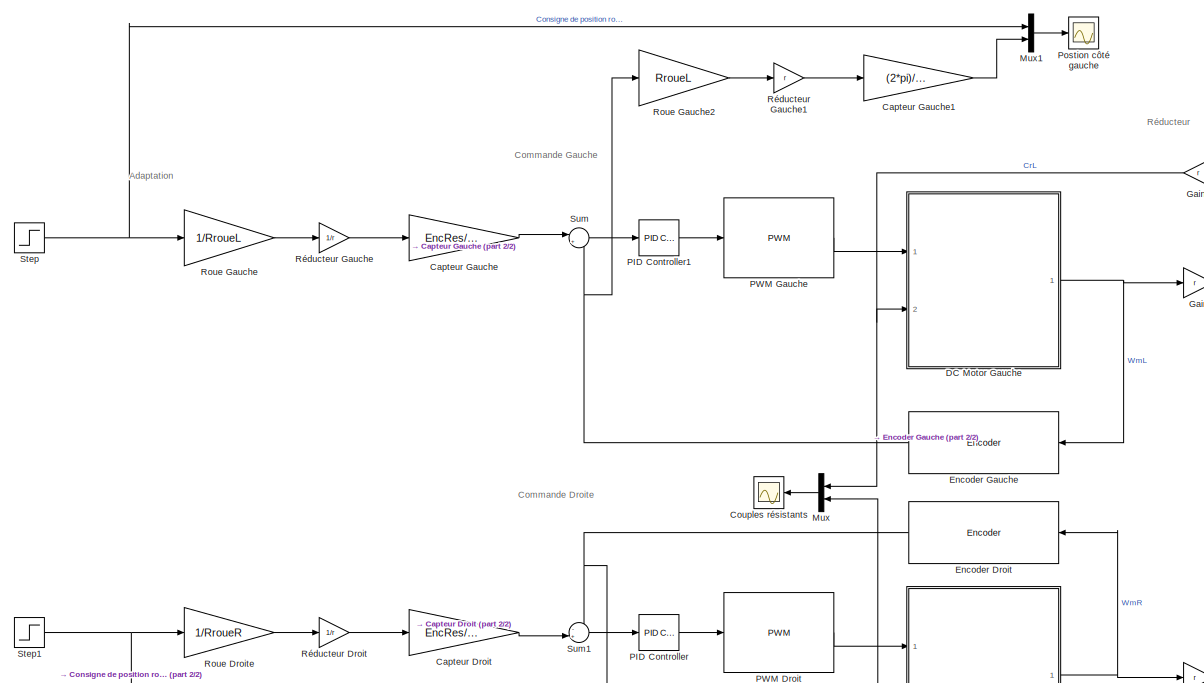
[diagram: root canvas - part 1/2, central region]
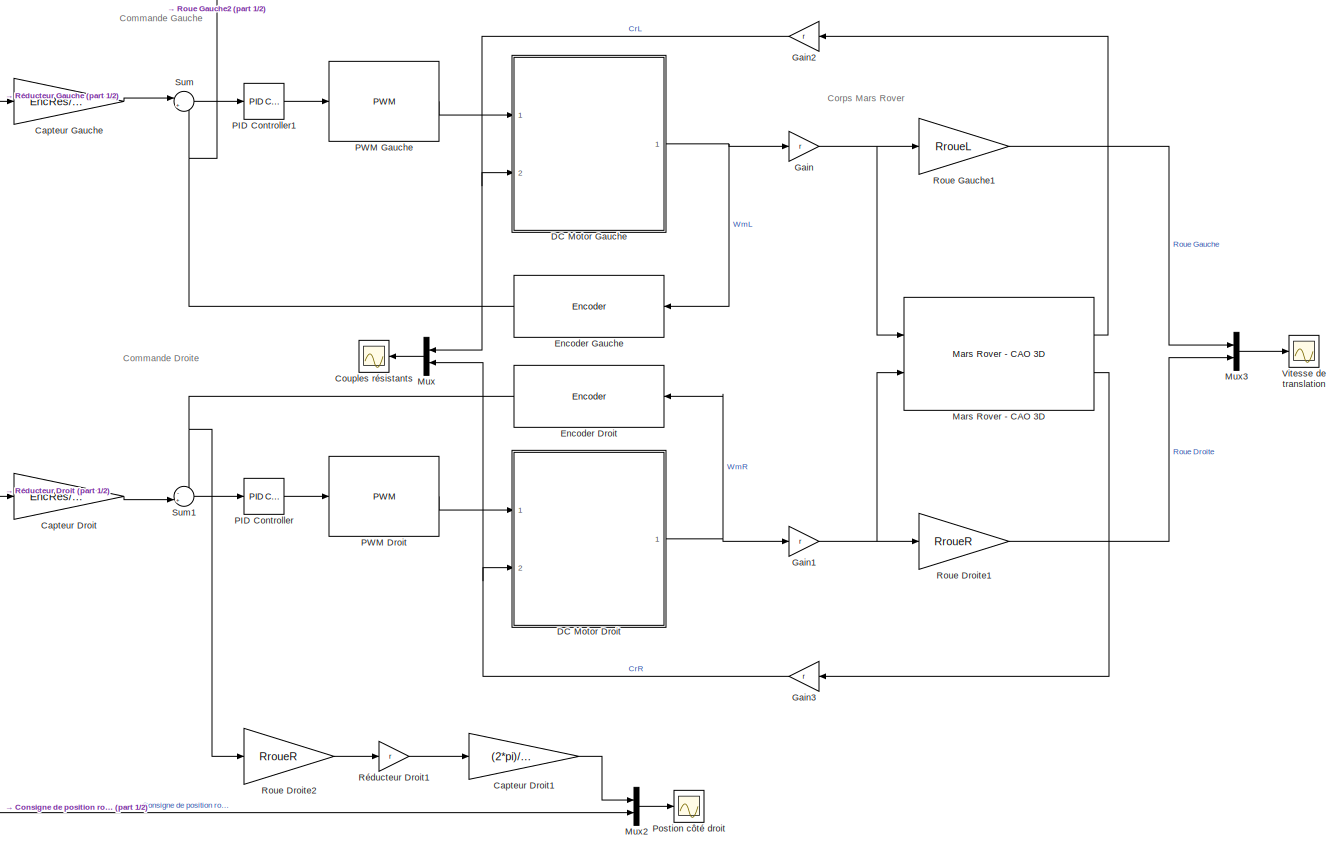
[diagram: root canvas - part 2/2, most of the canvas]
MODEL slx_0b875bb0223c
KIND model
CONFIG AbsTol = auto
CONFIG FixedStep = auto
CONFIG InitFcn = load('LeftInput_Measures.mat');\nload('LeftOutput_Measures.mat');\nParametres_Rover
CONFIG MaxStep = auto
CONFIG MinStep = auto
CONFIG RelTol = 1e-3
CONFIG SampleTimeConstraint = Unconstrained
CONFIG Solver = ode23t
CONFIG SolverMode = Auto
CONFIG SolverName = ode23t
CONFIG StartTime = 0.0
CONFIG StopTime = 10.0
BLOCK [Gain] Capteur Droit
  Gain = EncRes/(2*pi)
  OutDataTypeStr = Inherit: Inherit via internal rule
  ParamDataTypeStr = Inherit: Inherit via internal rule
  SaturateOnIntegerOverflow = off
BLOCK [Gain] Capteur Droit1
  Gain = (2*pi)/EncRes
  OutDataTypeStr = Inherit: Inherit via internal rule
  ParamDataTypeStr = Inherit: Inherit via internal rule
  SaturateOnIntegerOverflow = off
BLOCK [Gain] Capteur Gauche
  Gain = EncRes/(2*pi)
  OutDataTypeStr = Inherit: Inherit via internal rule
  ParamDataTypeStr = Inherit: Inherit via internal rule
  SaturateOnIntegerOverflow = off
BLOCK [Gain] Capteur Gauche1
  Gain = (2*pi)/EncRes
  OutDataTypeStr = Inherit: Inherit via internal rule
  ParamDataTypeStr = Inherit: Inherit via internal rule
  SaturateOnIntegerOverflow = off
BLOCK [Scope] Couples résistants
  Floating = off
  LimitDataPoints = off
  NumInputPorts = 1
  Ports = [1]
  YMax = 0.003
  YMin = -0.0015
  ZoomMode = xonly
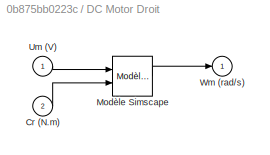
BLOCK [SubSystem] DC Motor Droit
  AttributesFormatString = %<BlockChoice>
  BlockChoice = Modèle Simscape
  MemberBlocks = Modèle Simscape,Modèle Simulink
  Ports = [2, 1]
  RequestExecContextInheritance = off
  TemplateBlock = SingleMotor_V_to_rads/DC Motor
BLOCK [Inport] DC Motor Droit/Cr (N.m)
  IconDisplay = Port number
  Port = 2
BLOCK [Reference] DC Motor Droit/Modèle Simscape  REF=SingleMotor_V_to_rads/Modèle Simscape
  Jm_lib = Jm
  Kphi_lib = Kphi
  Lm_lib = Lm
  Ports = [2, 1]
  Rm_lib = Rm
  SourceBlock = SingleMotor_V_to_rads/Modèle Simscape
  bm_lib = bm
BLOCK [Inport] DC Motor Droit/Um (V)
  IconDisplay = Port number
BLOCK [Outport] DC Motor Droit/Wm (rad//s)
  IconDisplay = Port number
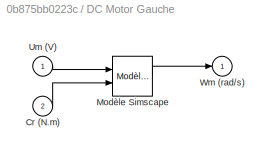
BLOCK [SubSystem] DC Motor Gauche
  AttributesFormatString = %<BlockChoice>
  BlockChoice = Modèle Simscape
  MemberBlocks = Modèle Simscape,Modèle Simulink
  Ports = [2, 1]
  RequestExecContextInheritance = off
  TemplateBlock = SingleMotor_V_to_rads/DC Motor
BLOCK [Inport] DC Motor Gauche/Cr (N.m)
  IconDisplay = Port number
  Port = 2
BLOCK [Reference] DC Motor Gauche/Modèle Simscape  REF=SingleMotor_V_to_rads/Modèle Simscape
  Jm_lib = Jm
  Kphi_lib = Kphi
  Lm_lib = Lm
  Ports = [2, 1]
  Rm_lib = Rm
  SourceBlock = SingleMotor_V_to_rads/Modèle Simscape
  bm_lib = bm
BLOCK [Inport] DC Motor Gauche/Um (V)
  IconDisplay = Port number
BLOCK [Outport] DC Motor Gauche/Wm (rad//s)
  IconDisplay = Port number
BLOCK [Reference] Encoder Droit  REF=SingleMotor_Duty_to_inc/Encoder
  EncRes = EncRes
  Ports = [1, 1]
  SourceBlock = SingleMotor_Duty_to_inc/Encoder
BLOCK [Reference] Encoder Gauche  REF=SingleMotor_Duty_to_inc/Encoder
  EncRes = EncRes
  Ports = [1, 1]
  SourceBlock = SingleMotor_Duty_to_inc/Encoder
BLOCK [Gain] Gain
  Gain = r
  OutDataTypeStr = Inherit: Inherit via internal rule
  ParamDataTypeStr = Inherit: Inherit via internal rule
  SaturateOnIntegerOverflow = off
BLOCK [Gain] Gain1
  Gain = r
  OutDataTypeStr = Inherit: Inherit via internal rule
  ParamDataTypeStr = Inherit: Inherit via internal rule
  SaturateOnIntegerOverflow = off
BLOCK [Gain] Gain2
  Gain = r
  OutDataTypeStr = Inherit: Inherit via internal rule
  ParamDataTypeStr = Inherit: Inherit via internal rule
  SaturateOnIntegerOverflow = off
BLOCK [Gain] Gain3
  Gain = r
  OutDataTypeStr = Inherit: Inherit via internal rule
  ParamDataTypeStr = Inherit: Inherit via internal rule
  SaturateOnIntegerOverflow = off
BLOCK [Reference] Mars Rover - CAO 3D  REF=MarsRover_SimMechanics/Mars Rover - CAO 3D
  Ports = [2, 2]
  SourceBlock = MarsRover_SimMechanics/Mars Rover - CAO 3D
BLOCK [Mux] Mux
  DisplayOption = bar
  Inputs = 2
  Ports = [2, 1]
BLOCK [Mux] Mux1
  DisplayOption = bar
  Inputs = 2
  Ports = [2, 1]
BLOCK [Mux] Mux2
  DisplayOption = bar
  Inputs = 2
  Ports = [2, 1]
BLOCK [Mux] Mux3
  DisplayOption = bar
  Inputs = 2
  Ports = [2, 1]
BLOCK [Reference] PID Controller  REF=simulink/Continuous/PID Controller
  AntiWindupMode = none
  Controller = PID
  ControllerParametersSource = internal
  D = DR
  DGainOutDataTypeStr = Inherit: Inherit via internal rule
  DOutDataTypeStr = Inherit: Inherit via internal rule
  DOutMax = []
  DOutMin = []
  DParamDataTypeStr = Inherit: Inherit via internal rule
  DParamMax = []
  DParamMin = []
  DProdOutDataTypeStr = Inherit: Inherit via internal rule
  DifferentiatorICPrevScaledInput = 0
  DifferentiatorOutDataTypeStr = Inherit: Inherit via internal rule
  DifferentiatorOutMax = []
  DifferentiatorOutMin = []
  ExternalReset = none
  FilterContinuousStateAttributes = ''
  FilterMethod = Forward Euler
  FilterOutDataTypeStr = Inherit: Inherit via internal rule
  FilterOutMax = []
  FilterOutMin = []
  FilterRTWStateStorageClass = Auto
  FilterStateMustResolveToSignalObject = off
  Form = Parallel
  I = IR
  IGainOutDataTypeStr = Inherit: Inherit via internal rule
  IOutDataTypeStr = Inherit: Inherit via internal rule
  IOutMax = []
  IOutMin = []
  IParamDataTypeStr = Inherit: Inherit via internal rule
  IParamMax = []
  IParamMin = []
  IProdOutDataTypeStr = Inherit: Inherit via internal rule
  IgnoreLimit = off
  InitialConditionForFilter = 0
  InitialConditionForIntegrator = 0
  InitialConditionSource = internal
  IntegratorContinuousStateAttributes = ''
  IntegratorMethod = Forward Euler
  IntegratorOutDataTypeStr = Inherit: Inherit via internal rule
  IntegratorOutMax = []
  IntegratorOutMin = []
  IntegratorRTWStateStorageClass = Auto
  IntegratorStateMustResolveToSignalObject = off
  Kb = 1
  KbOutDataTypeStr = Inherit: Inherit via internal rule
  KbOutMax = []
  KbOutMin = []
  KbParamDataTypeStr = Inherit: Inherit via internal rule
  KbParamMax = []
  KbParamMin = []
  Kt = 1
  KtOutDataTypeStr = Inherit: Inherit via internal rule
  KtOutMax = []
  KtOutMin = []
  KtParamDataTypeStr = Inherit: Inherit via internal rule
  KtParamMax = []
  KtParamMin = []
  LimitOutput = off
  LinearizeAsGain = on
  LockScale = off
  LowerSaturationLimit = -inf
  N = NR
  NGainOutDataTypeStr = Inherit: Inherit via internal rule
  NOutDataTypeStr = Inherit: Inherit via internal rule
  NOutMax = []
  NOutMin = []
  NParamDataTypeStr = Inherit: Inherit via internal rule
  NParamMax = []
  NParamMin = []
  NProdOutDataTypeStr = Inherit: Inherit via internal rule
  P = PR
  PGainOutDataTypeStr = Inherit: Inherit via internal rule
  POutDataTypeStr = Inherit: Inherit via internal rule
  POutMax = []
  POutMin = []
  PParamDataTypeStr = Inherit: Inherit via internal rule
  PParamMax = []
  PParamMin = []
  PProdOutDataTypeStr = Inherit: Inherit via internal rule
  Ports = [1, 1]
  RndMeth = Floor
  SampleTime = -1
  SaturateOnIntegerOverflow = off
  SaturationOutDataTypeStr = Inherit: Same as input
  SaturationOutMax = []
  SaturationOutMin = []
  SourceBlock = simulink/Continuous/PID Controller
  SourceType = PID 1dof
  SumAccumDataTypeStr = Inherit: Inherit via internal rule
  SumDAccumDataTypeStr = Inherit: Inherit via internal rule
  SumDOutDataTypeStr = Inherit: Inherit via internal rule
  SumDOutMax = []
  SumDOutMin = []
  SumI1AccumDataTypeStr = Inherit: Inherit via internal rule
  SumI1OutDataTypeStr = Inherit: Inherit via internal rule
  SumI1OutMax = []
  SumI1OutMin = []
  SumI2AccumDataTypeStr = Inherit: Inherit via internal rule
  SumI2OutDataTypeStr = Inherit: Inherit via internal rule
  SumI2OutMax = []
  SumI2OutMin = []
  SumI3AccumDataTypeStr = Inherit: Inherit via internal rule
  SumI3OutDataTypeStr = Inherit: Inherit via internal rule
  SumI3OutMax = []
  SumI3OutMin = []
  SumOutDataTypeStr = Inherit: Inherit via internal rule
  SumOutMax = []
  SumOutMin = []
  TimeDomain = Continuous-time
  TrackingMode = off
  UpperSaturationLimit = inf
  UseFilter = on
  ZeroCross = on
BLOCK [Reference] PID Controller1  REF=simulink/Continuous/PID Controller
  AntiWindupMode = none
  Controller = PID
  ControllerParametersSource = internal
  D = DL
  DGainOutDataTypeStr = Inherit: Inherit via internal rule
  DOutDataTypeStr = Inherit: Inherit via internal rule
  DOutMax = []
  DOutMin = []
  DParamDataTypeStr = Inherit: Inherit via internal rule
  DParamMax = []
  DParamMin = []
  DProdOutDataTypeStr = Inherit: Inherit via internal rule
  DifferentiatorICPrevScaledInput = 0
  DifferentiatorOutDataTypeStr = Inherit: Inherit via internal rule
  DifferentiatorOutMax = []
  DifferentiatorOutMin = []
  ExternalReset = none
  FilterContinuousStateAttributes = ''
  FilterMethod = Forward Euler
  FilterOutDataTypeStr = Inherit: Inherit via internal rule
  FilterOutMax = []
  FilterOutMin = []
  FilterRTWStateStorageClass = Auto
  FilterStateMustResolveToSignalObject = off
  Form = Parallel
  I = IL
  IGainOutDataTypeStr = Inherit: Inherit via internal rule
  IOutDataTypeStr = Inherit: Inherit via internal rule
  IOutMax = []
  IOutMin = []
  IParamDataTypeStr = Inherit: Inherit via internal rule
  IParamMax = []
  IParamMin = []
  IProdOutDataTypeStr = Inherit: Inherit via internal rule
  IgnoreLimit = off
  InitialConditionForFilter = 0
  InitialConditionForIntegrator = 0
  InitialConditionSource = internal
  IntegratorContinuousStateAttributes = ''
  IntegratorMethod = Forward Euler
  IntegratorOutDataTypeStr = Inherit: Inherit via internal rule
  IntegratorOutMax = []
  IntegratorOutMin = []
  IntegratorRTWStateStorageClass = Auto
  IntegratorStateMustResolveToSignalObject = off
  Kb = 1
  KbOutDataTypeStr = Inherit: Inherit via internal rule
  KbOutMax = []
  KbOutMin = []
  KbParamDataTypeStr = Inherit: Inherit via internal rule
  KbParamMax = []
  KbParamMin = []
  Kt = 1
  KtOutDataTypeStr = Inherit: Inherit via internal rule
  KtOutMax = []
  KtOutMin = []
  KtParamDataTypeStr = Inherit: Inherit via internal rule
  KtParamMax = []
  KtParamMin = []
  LimitOutput = off
  LinearizeAsGain = on
  LockScale = off
  LowerSaturationLimit = -inf
  N = NL
  NGainOutDataTypeStr = Inherit: Inherit via internal rule
  NOutDataTypeStr = Inherit: Inherit via internal rule
  NOutMax = []
  NOutMin = []
  NParamDataTypeStr = Inherit: Inherit via internal rule
  NParamMax = []
  NParamMin = []
  NProdOutDataTypeStr = Inherit: Inherit via internal rule
  P = PL
  PGainOutDataTypeStr = Inherit: Inherit via internal rule
  POutDataTypeStr = Inherit: Inherit via internal rule
  POutMax = []
  POutMin = []
  PParamDataTypeStr = Inherit: Inherit via internal rule
  PParamMax = []
  PParamMin = []
  PProdOutDataTypeStr = Inherit: Inherit via internal rule
  Ports = [1, 1]
  RndMeth = Floor
  SampleTime = -1
  SaturateOnIntegerOverflow = off
  SaturationOutDataTypeStr = Inherit: Same as input
  SaturationOutMax = []
  SaturationOutMin = []
  SourceBlock = simulink/Continuous/PID Controller
  SourceType = PID 1dof
  SumAccumDataTypeStr = Inherit: Inherit via internal rule
  SumDAccumDataTypeStr = Inherit: Inherit via internal rule
  SumDOutDataTypeStr = Inherit: Inherit via internal rule
  SumDOutMax = []
  SumDOutMin = []
  SumI1AccumDataTypeStr = Inherit: Inherit via internal rule
  SumI1OutDataTypeStr = Inherit: Inherit via internal rule
  SumI1OutMax = []
  SumI1OutMin = []
  SumI2AccumDataTypeStr = Inherit: Inherit via internal rule
  SumI2OutDataTypeStr = Inherit: Inherit via internal rule
  SumI2OutMax = []
  SumI2OutMin = []
  SumI3AccumDataTypeStr = Inherit: Inherit via internal rule
  SumI3OutDataTypeStr = Inherit: Inherit via internal rule
  SumI3OutMax = []
  SumI3OutMin = []
  SumOutDataTypeStr = Inherit: Inherit via internal rule
  SumOutMax = []
  SumOutMin = []
  TimeDomain = Continuous-time
  TrackingMode = off
  UpperSaturationLimit = inf
  UseFilter = on
  ZeroCross = on
BLOCK [Reference] PWM Droit  REF=SingleMotor_Duty_to_inc/PWM
  FreqTriangle = FreqPWM
  Ports = [1, 1]
  SourceBlock = SingleMotor_Duty_to_inc/PWM
BLOCK [Reference] PWM Gauche  REF=SingleMotor_Duty_to_inc/PWM
  FreqTriangle = FreqPWM
  Ports = [1, 1]
  SourceBlock = SingleMotor_Duty_to_inc/PWM
BLOCK [Scope] Postion côté droit
  Floating = off
  LimitDataPoints = off
  NumInputPorts = 1
  Ports = [1]
  SaveName = ScopeData2
  YMax = 0.003
  YMin = -0.0015
  ZoomMode = xonly
BLOCK [Scope] Postion côté gauche
  Floating = off
  LimitDataPoints = off
  NumInputPorts = 1
  Ports = [1]
  SaveName = ScopeData1
  YMax = 0.003
  YMin = -0.0015
  ZoomMode = xonly
BLOCK [Gain] Roue Droite
  Gain = 1/RroueR
  OutDataTypeStr = Inherit: Inherit via internal rule
  ParamDataTypeStr = Inherit: Inherit via internal rule
  SaturateOnIntegerOverflow = off
BLOCK [Gain] Roue Droite1
  Gain = RroueR
  OutDataTypeStr = Inherit: Inherit via internal rule
  ParamDataTypeStr = Inherit: Inherit via internal rule
  SaturateOnIntegerOverflow = off
BLOCK [Gain] Roue Droite2
  Gain = RroueR
  OutDataTypeStr = Inherit: Inherit via internal rule
  ParamDataTypeStr = Inherit: Inherit via internal rule
  SaturateOnIntegerOverflow = off
BLOCK [Gain] Roue Gauche
  Gain = 1/RroueL
  OutDataTypeStr = Inherit: Inherit via internal rule
  ParamDataTypeStr = Inherit: Inherit via internal rule
  SaturateOnIntegerOverflow = off
BLOCK [Gain] Roue Gauche1
  Gain = RroueL
  OutDataTypeStr = Inherit: Inherit via internal rule
  ParamDataTypeStr = Inherit: Inherit via internal rule
  SaturateOnIntegerOverflow = off
BLOCK [Gain] Roue Gauche2
  Gain = RroueL
  OutDataTypeStr = Inherit: Inherit via internal rule
  ParamDataTypeStr = Inherit: Inherit via internal rule
  SaturateOnIntegerOverflow = off
BLOCK [Gain] Réducteur Droit
  Gain = 1/r
  OutDataTypeStr = Inherit: Inherit via internal rule
  ParamDataTypeStr = Inherit: Inherit via internal rule
  SaturateOnIntegerOverflow = off
BLOCK [Gain] Réducteur Droit1
  Gain = r
  OutDataTypeStr = Inherit: Inherit via internal rule
  ParamDataTypeStr = Inherit: Inherit via internal rule
  SaturateOnIntegerOverflow = off
BLOCK [Gain] Réducteur Gauche
  Gain = 1/r
  OutDataTypeStr = Inherit: Inherit via internal rule
  ParamDataTypeStr = Inherit: Inherit via internal rule
  SaturateOnIntegerOverflow = off
BLOCK [Gain] Réducteur Gauche1
  Gain = r
  OutDataTypeStr = Inherit: Inherit via internal rule
  ParamDataTypeStr = Inherit: Inherit via internal rule
  SaturateOnIntegerOverflow = off
BLOCK [Step] Step
  After = 0.010
  SampleTime = 0
  Time = 3
BLOCK [Step] Step1
  After = 0.010
  SampleTime = 0
  Time = 3
BLOCK [Sum] Sum
  IconShape = round
  InputSameDT = off
  Inputs = |+-
  OutDataTypeStr = Inherit: Inherit via internal rule
  Ports = [2, 1]
  SaturateOnIntegerOverflow = off
BLOCK [Sum] Sum1
  IconShape = round
  InputSameDT = off
  Inputs = -+|
  OutDataTypeStr = Inherit: Inherit via internal rule
  Ports = [2, 1]
  SaturateOnIntegerOverflow = off
BLOCK [Scope] Vitesse de translation
  Floating = off
  LimitDataPoints = off
  NumInputPorts = 1
  Ports = [1]
  SaveName = ScopeData3
  YMax = 1.8
  YMin = 5.55112e-17
ANNOTATION (root): Adaptation
ANNOTATION (root): Commande Droite
ANNOTATION (root): Commande Gauche
ANNOTATION (root): Corps Mars Rover
ANNOTATION (root): Réducteur
LINE Capteur Droit1:1 -> Mux2:1
LINE Capteur Droit:1 -> Sum1:2
LINE Capteur Gauche1:1 -> Mux1:2
LINE Capteur Gauche:1 -> Sum:1
NET DC Motor Droit:1 -> Encoder Droit:1, Gain1:1
NET DC Motor Gauche:1 -> Encoder Gauche:1, Gain:1
NET Encoder Droit:1 -> Roue Droite2:1, Sum1:1
NET Encoder Gauche:1 -> Roue Gauche2:1, Sum:2
NET Gain1:1 -> Mars Rover - CAO 3D:2, Roue Droite1:1
NET Gain2:1 -> DC Motor Gauche:2, Mux:1
NET Gain3:1 -> DC Motor Droit:2, Mux:2
NET Gain:1 -> Mars Rover - CAO 3D:1, Roue Gauche1:1
LINE Mars Rover - CAO 3D:1 -> Gain2:1
LINE Mars Rover - CAO 3D:2 -> Gain3:1
LINE Mux1:1 -> Postion côté gauche:1
LINE Mux2:1 -> Postion côté droit:1
LINE Mux3:1 -> Vitesse de translation:1
LINE Mux:1 -> Couples résistants:1
LINE PID Controller1:1 -> PWM Gauche:1
LINE PID Controller:1 -> PWM Droit:1
LINE PWM Droit:1 -> DC Motor Droit:1
LINE PWM Gauche:1 -> DC Motor Gauche:1
LINE Roue Droite1:1 -> Mux3:2
LINE Roue Droite2:1 -> Réducteur Droit1:1
LINE Roue Droite:1 -> Réducteur Droit:1
LINE Roue Gauche1:1 -> Mux3:1
LINE Roue Gauche2:1 -> Réducteur Gauche1:1
LINE Roue Gauche:1 -> Réducteur Gauche:1
LINE Réducteur Droit1:1 -> Capteur Droit1:1
LINE Réducteur Droit:1 -> Capteur Droit:1
LINE Réducteur Gauche1:1 -> Capteur Gauche1:1
LINE Réducteur Gauche:1 -> Capteur Gauche:1
NET Step1:1 -> Mux2:2, Roue Droite:1
NET Step:1 -> Mux1:1, Roue Gauche:1
LINE Sum1:1 -> PID Controller:1
LINE Sum:1 -> PID Controller1:1
note: NET lines group one-source signal fan-out (src -> all destinations, sorted); 1:1 wires keep LINE
